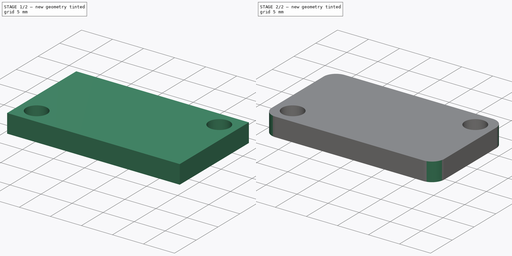
[diagram: build sequence overview — one tinted view per stage of 2, left to right]
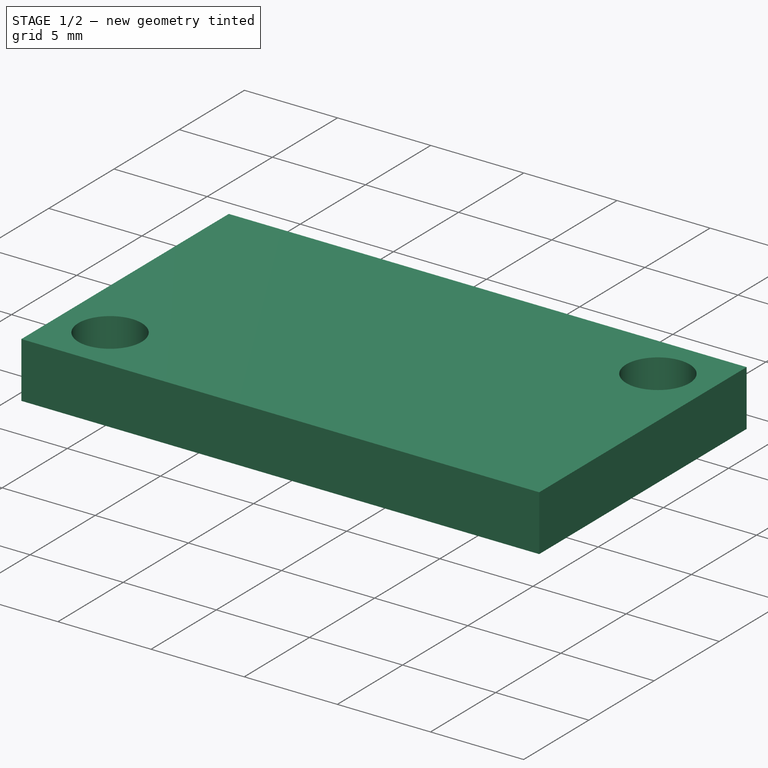
[diagram: stage 1 of 2 — iso view after this stage's code; geometry added in this stage tinted green]
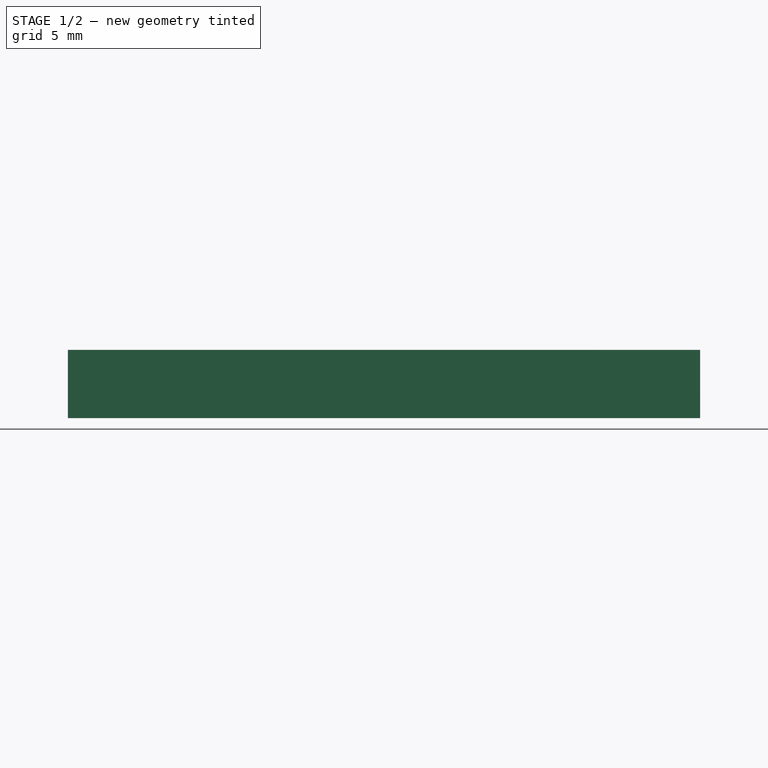
[diagram: stage 1 of 2 — front view after this stage's code; geometry added in this stage tinted green]
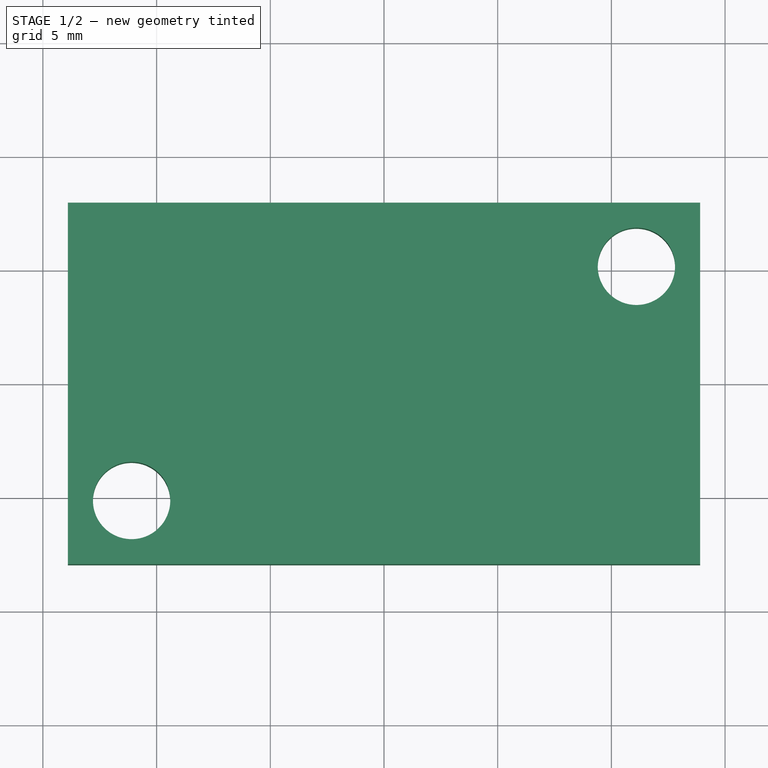
[diagram: stage 1 of 2 — top view after this stage's code; geometry added in this stage tinted green]
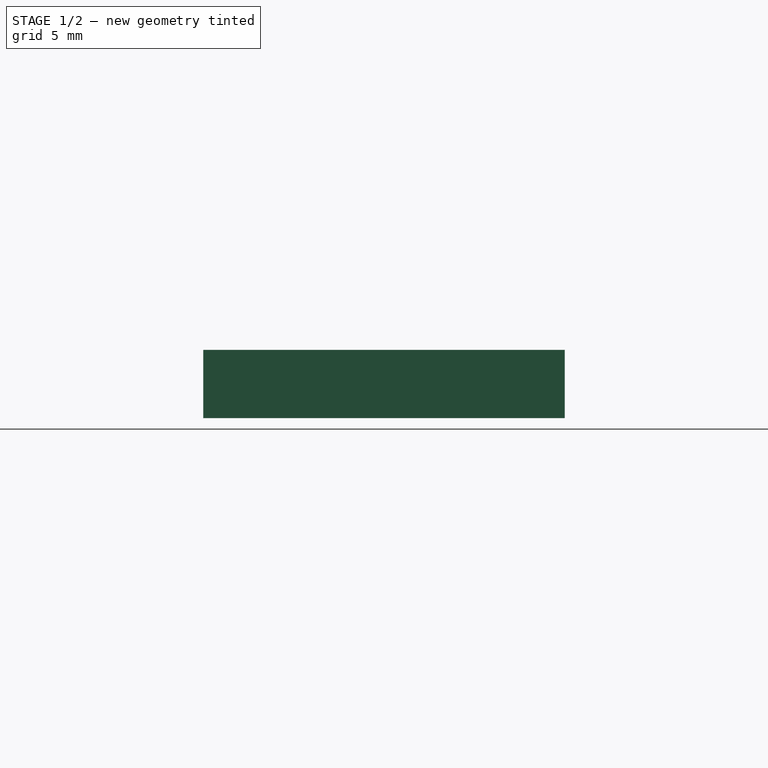
[diagram: stage 1 of 2 — right view after this stage's code; geometry added in this stage tinted green]
FCSTD DOCUMENT  (FreeCAD 1.0R39109 (Git))
Label: ARM_SideTarget_SwitchSpacer
License: All rights reserved
LicenseURL: https://en.wikipedia.org/wiki/All_rights_reserved
objects: Sketcher::SketchObject×1, PartDesign::Pad×1, PartDesign::Fillet×1, PartDesign::Body×1
note: 9 computed .brp shape members not serialized (recipe doc carries the construction recipe); baked Part::Feature solids carry a one-line shape summary decoded from their .brp

FEATURE [Sketcher::SketchObject] Sketch
  ArcFitTolerance = 1e-06
  AttachmentSupport = -> [XY_Plane]
  FullyConstrained = true
  MakeInternals = false
  MapMode = 5
  sketch-geometry (15):
    g0: LineSegment [constr] StartX=-11.1 StartY=-5.15 StartZ=0 EndX=11.1 EndY=-5.15 EndZ=0
    g1: LineSegment [constr] StartX=11.1 StartY=-5.15 StartZ=0 EndX=11.1 EndY=5.15 EndZ=0
    g2: LineSegment [constr] StartX=11.1 StartY=5.15 StartZ=0 EndX=-11.1 EndY=5.15 EndZ=0
    g3: LineSegment [constr] StartX=-11.1 StartY=5.15 StartZ=0 EndX=-11.1 EndY=-5.15 EndZ=0
    g4: GeomPoint [constr] X=0 Y=0 Z=0
    g5: LineSegment [constr] StartX=-11.1 StartY=-5.15 StartZ=0 EndX=-13.9 EndY=-5.15 EndZ=0
    g6: LineSegment [constr] StartX=-13.9 StartY=-5.15 StartZ=0 EndX=-13.9 EndY=-7.95 EndZ=0
    g7: LineSegment [constr] StartX=-13.9 StartY=-7.95 StartZ=0 EndX=-11.1 EndY=-7.95 EndZ=0
    g8: LineSegment [constr] StartX=-11.1 StartY=-7.95 StartZ=0 EndX=-11.1 EndY=-5.15 EndZ=0
    g9: LineSegment StartX=-13.9 StartY=-7.95 StartZ=0 EndX=13.9 EndY=-7.95 EndZ=0
    g10: LineSegment StartX=13.9 StartY=-7.95 StartZ=0 EndX=13.9 EndY=7.95 EndZ=0
    g11: LineSegment StartX=13.9 StartY=7.95 StartZ=0 EndX=-13.9 EndY=7.95 EndZ=0
    g12: LineSegment StartX=-13.9 StartY=7.95 StartZ=0 EndX=-13.9 EndY=-7.95 EndZ=0
    g13: Circle CenterX=-11.1 CenterY=-5.15 CenterZ=0 NormalX=0 NormalY=0 NormalZ=1 AngleXU=0 Radius=1.7
    g14: Circle CenterX=11.1 CenterY=5.15 CenterZ=0 NormalX=0 NormalY=0 NormalZ=1 AngleXU=0 Radius=1.7
  constraints (38):
    c: Coincident(g0,g1)
    c: Coincident(g1,g2)
    c: Coincident(g2,g3)
    c: Coincident(g3,g0)
    c: Horizontal(g0)
    c: Horizontal(g2)
    c: Vertical(g1)
    c: Vertical(g3)
    c: Symmetric(g2,g0,g4)
    c: Distance(g1,g3) = 22.2
    c: Distance(g0,g2) = 10.3
    c: Coincident(g4,g-1)
    c: Coincident(g5,g6)
    c: Coincident(g6,g7)
    c: Coincident(g7,g8)
    c: Coincident(g8,g5)
    c: Horizontal(g5)
    c: Horizontal(g7)
    c: Vertical(g6)
    c: Vertical(g8)
    c: Distance(g6,g8) = 2.8
    c: Distance(g5,g7) = 2.8
    c: Coincident(g5,g0)
    c: Coincident(g9,g10)
    c: Coincident(g10,g11)
    c: Coincident(g11,g12)
    c: Coincident(g12,g9)
    c: Horizontal(g9)
    c: Horizontal(g11)
    c: Vertical(g10)
    c: Vertical(g12)
    c: Distance(g10,g12) = 27.8
    c: Distance(g9,g11) = 15.9
    c: Coincident(g9,g6)
    c: Diameter(g13) = 3.4
    c: Coincident(g13,g0)
    c: Diameter(g14) = 3.4
    c: Coincident(g14,g1)
FEATURE [PartDesign::Pad] Pad
  Direction = (0,0,1)
  Length = 3
  Length2 = 10
  Profile = -> Sketch
  ReferenceAxis = -> Sketch [N_Axis]
  Refine = true
  Suppressed = false
  Type = 0
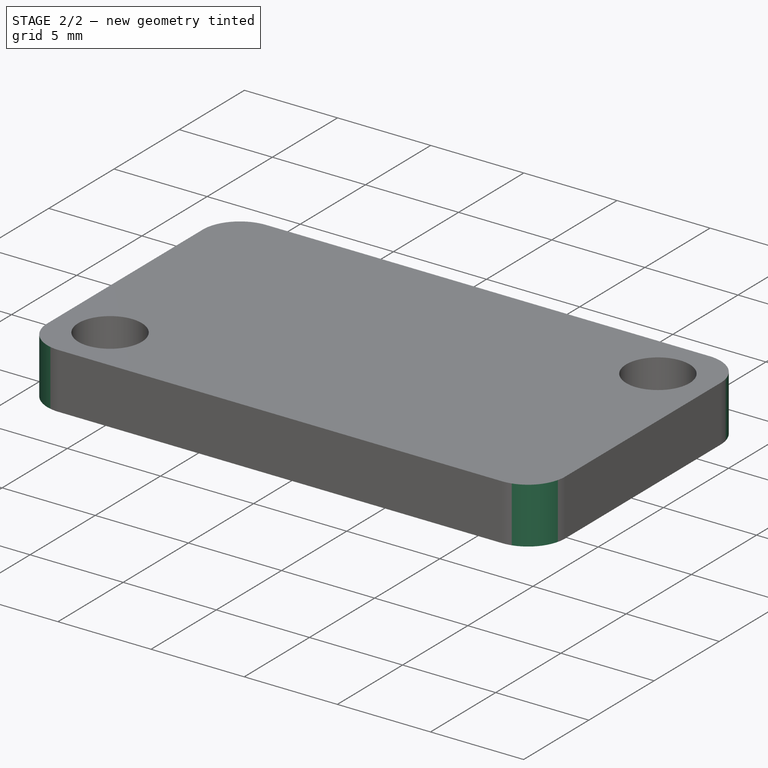
[diagram: stage 2 of 2 — iso view after this stage's code; geometry added in this stage tinted green]
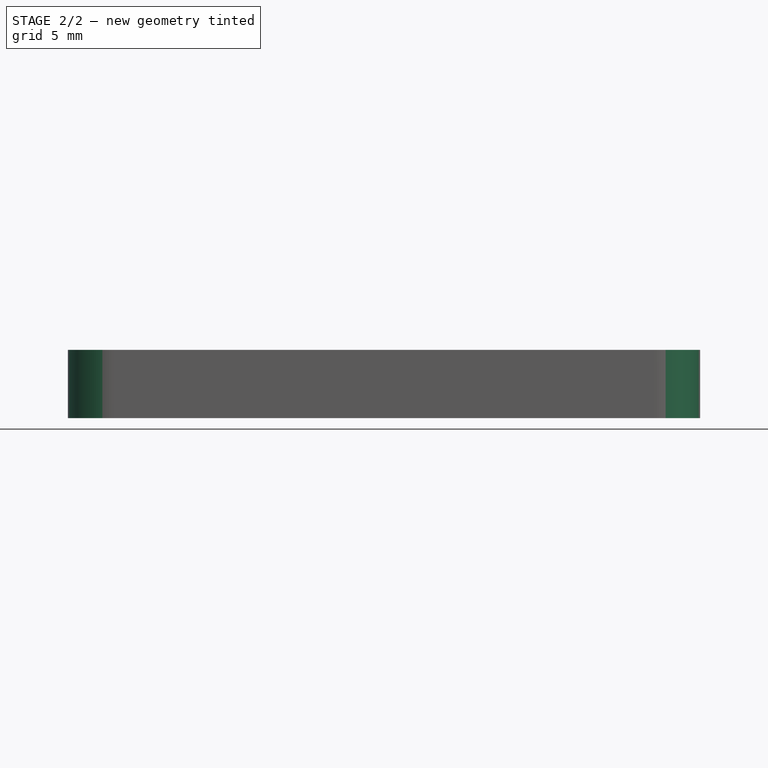
[diagram: stage 2 of 2 — front view after this stage's code; geometry added in this stage tinted green]
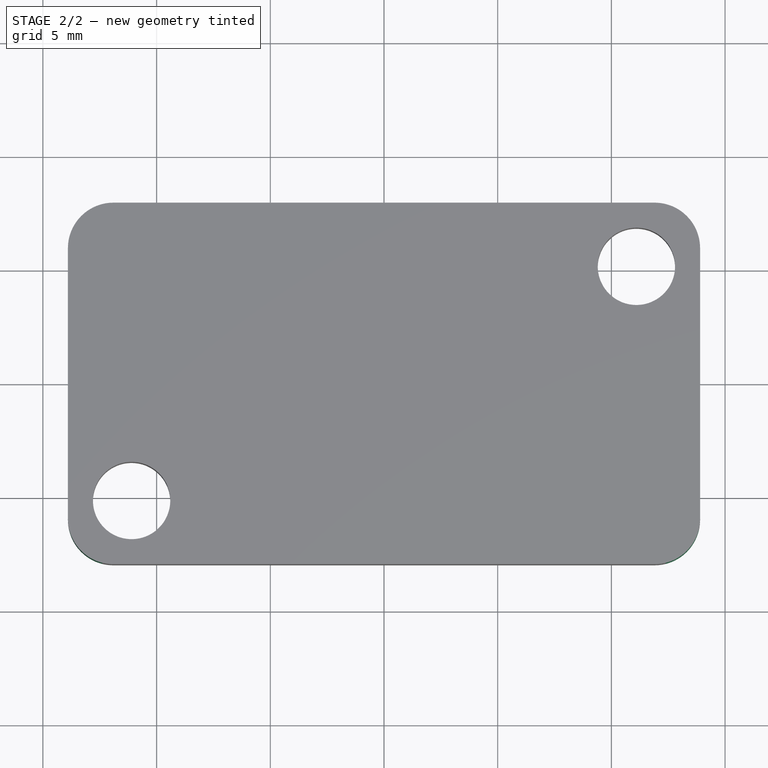
[diagram: stage 2 of 2 — top view after this stage's code; geometry added in this stage tinted green]
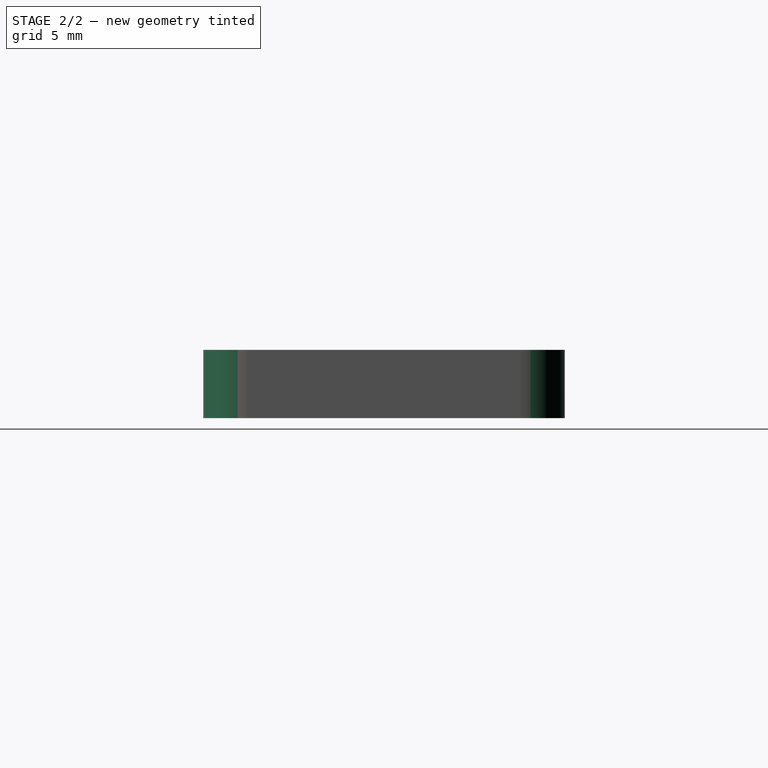
[diagram: stage 2 of 2 — right view after this stage's code; geometry added in this stage tinted green]
FEATURE [PartDesign::Fillet] Fillet
  Base = -> Pad [Edge2,Edge5,Edge1,Edge8]
  BaseFeature = -> Pad
  Radius = 2
  Refine = true
  SupportTransform = false
  Suppressed = false
  UseAllEdges = false
FEATURE [PartDesign::Body] Body
  AllowCompound = false
  Group = -> [Sketch,Pad,Fillet]
  Origin = -> Origin
  Tip = -> Fillet
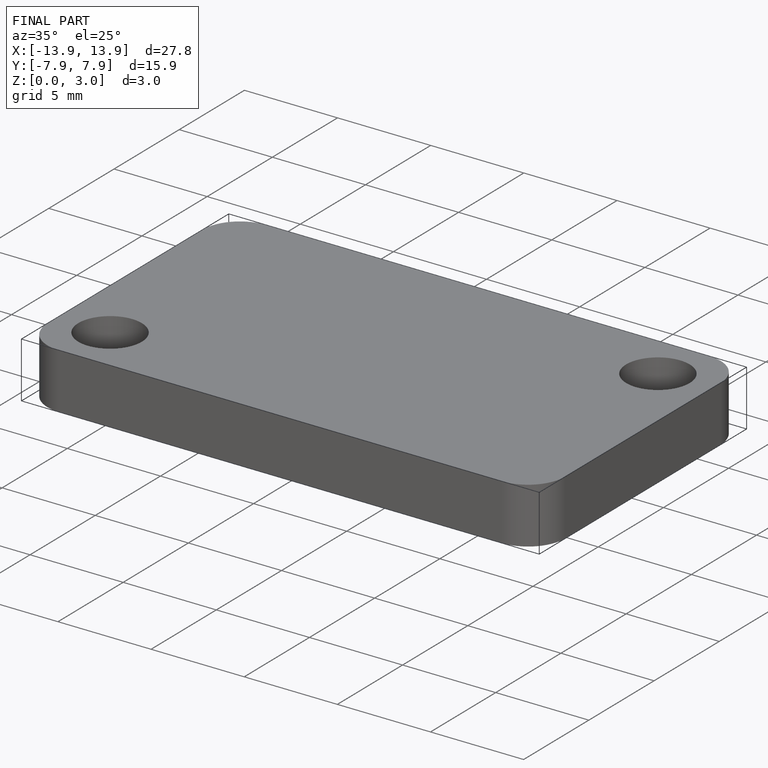
[diagram: finished part — iso view with bounding-box wireframe]
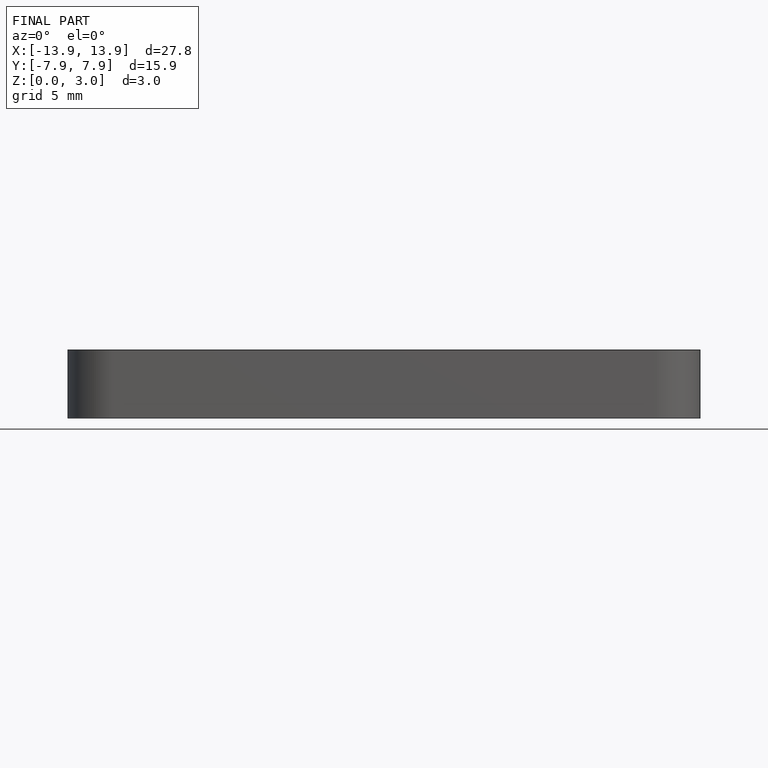
[diagram: finished part — front view with bounding-box wireframe]
